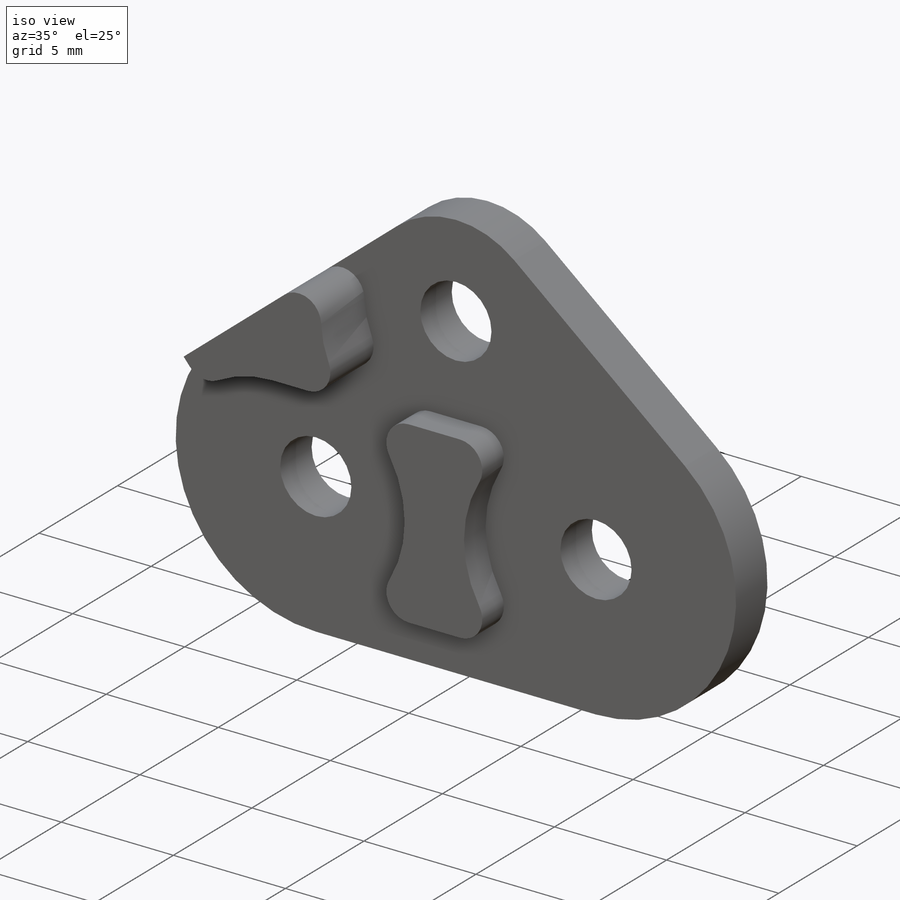
[diagram: iso view]
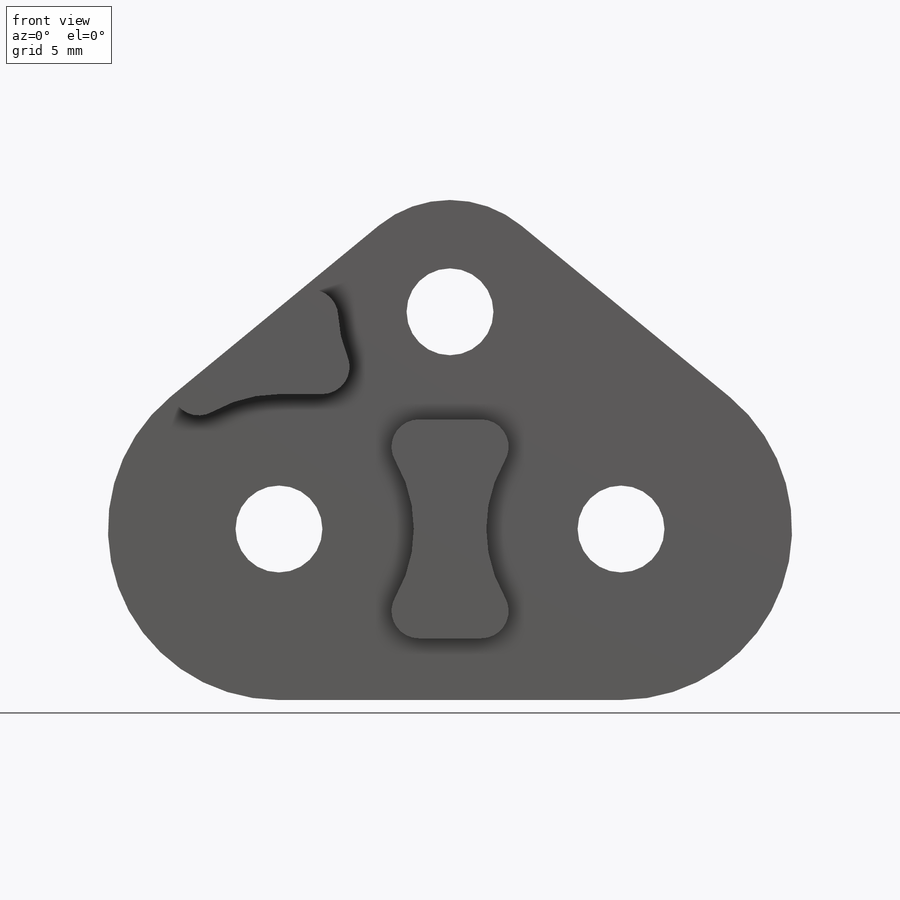
[diagram: front view]
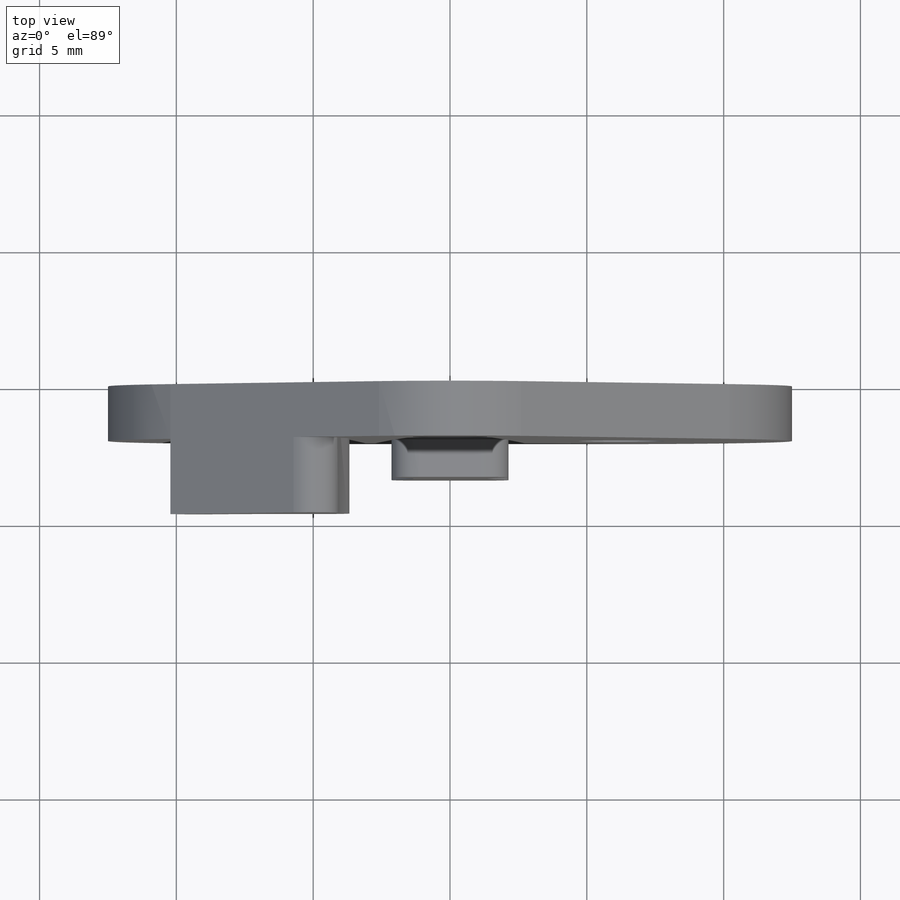
[diagram: top view]
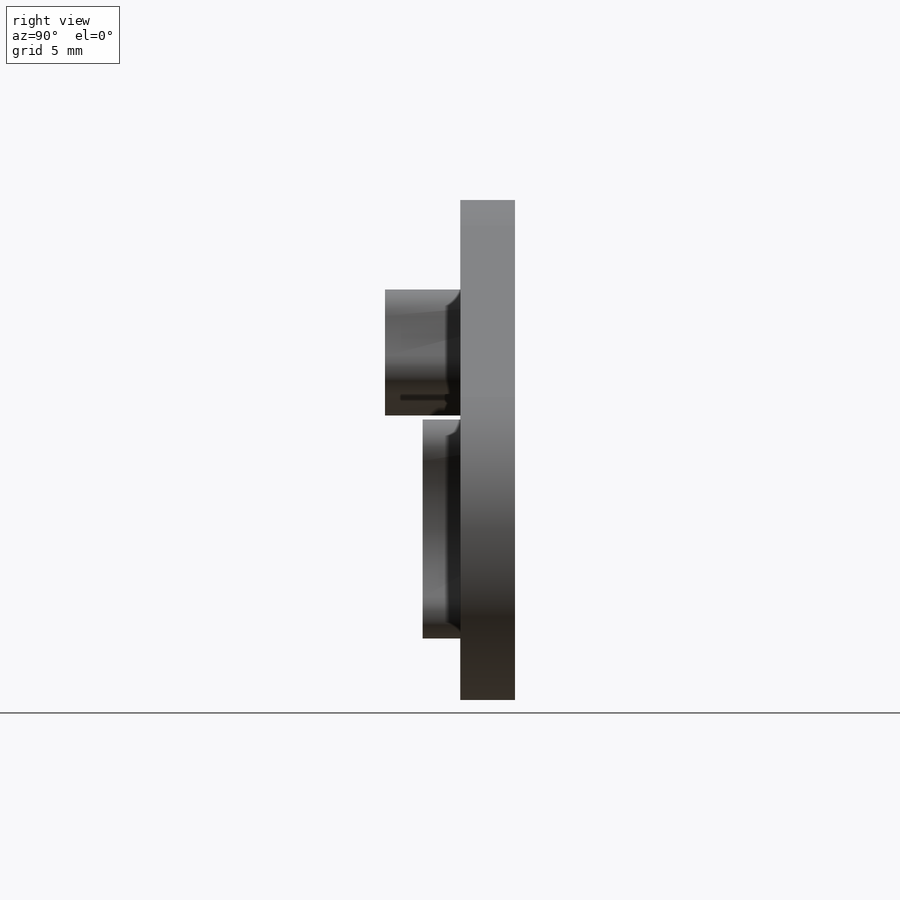
[diagram: right view]
SOLIDWORKS PART (.sldprt)
format: sldprt  version: not decoded by parser v0  size: 302,080 bytes
history: native  units: mm
features: sketch x5, extrude x4, material x1, cut_extrude x1, fillet x1 + 1 further entry (+17 scaffold rows collapsed; 3 parser-record rows omitted)
feature tree (33):
  scaffold x17  (default folders/planes/origin — collapsed)
  material  "ABS"
  "params_print"
  parser-record x3  (decoder bookkeeping rows leaked as tree rows — omitted from the tree; the rows remain in map.json)
  sketch  "Sketch1"  dims[D2=6.25mm D1=12.5mm D3=6.25mm]
  extrude  "Base"  Depth=2mm
  sketch  "Sketch2"  dims[D1=3.175mm]
  cut_extrude  "Pulley Pins"  [1 undecoded]
  sketch  "Sketch3"  dims[c1.D2=3.175mm c1.D3=4.0mm c1.D1=3.0mm c2.D3=4.0mm c2.D1=1.6875mm c3.D3=2.5mm]
  extrude  "Attachment Pin"  [1 undecoded]
  sketch  "Sketch4"  dims[c1.D1=9.85mm c1.D2=4.0mm c1.D3=3.0mm c1.D4=3.0mm c1.D5=1.35mm c2.D2=3.0mm c2.D3=~3.785793mm]
  extrude  "Side Extrudes"  Depth=2.75mm
  sketch  "Sketch5"  dims[D2=9.85mm D1=4.0mm]
  extrude  "Center Extrude"  Depth=1.375mm
  fillet  "Contouring"  Radius=1mm
decode coverage: 9 of 11 modeling features carry decoded parameters; 1 rows unclassified (native names shown)
note: ~ marks probable driven/reference dimensions
note: 2 parameter values undecoded
note: suppression state not decoded; provenance and decode notes live in map.json
